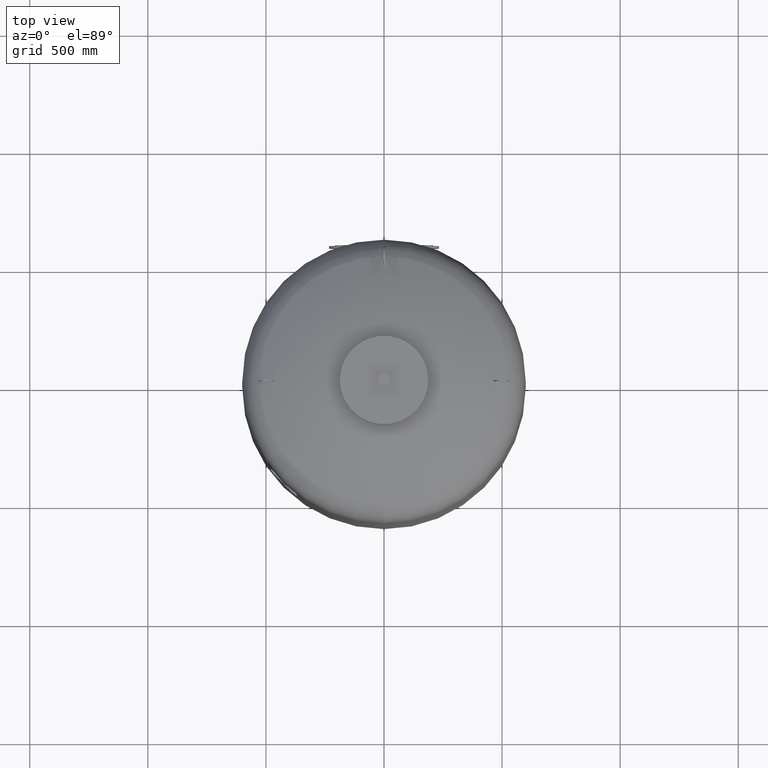
[diagram: clean part render]
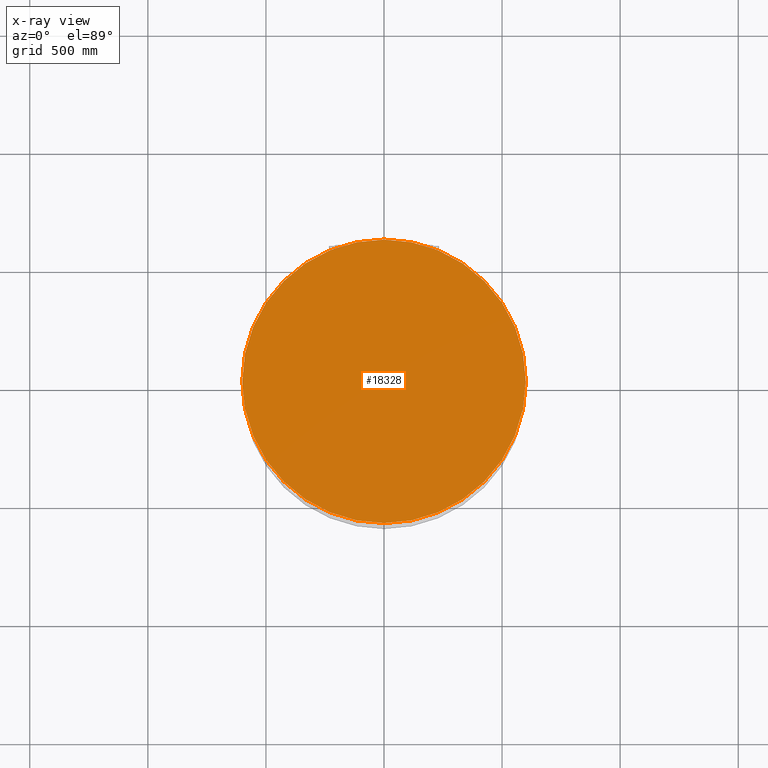
[diagram: x-ray — body ghosted, one internal face saturated and labeled with its STEP entity id]
A machine part, top view, then the same camera in x-ray: the body is ghosted and one INTERNAL B-rep face — a face not visible from any outside direction — is saturated and labeled: STEP entity #18328.
In plain terms, the highlighted planar face has unit normal (0, 0, 1).
Its self-contained STEP definition (entity closure, byte-faithful):
#18118=CARTESIAN_POINT('',(600.0,0.0,2145.0));
#18119=VERTEX_POINT('',#18118);
#18128=CARTESIAN_POINT('',(-600.000000000000110,-7.347638E-014,2145.0));
#18129=VERTEX_POINT('',#18128);
#18130=CARTESIAN_POINT('',(1.668796E-014,0.0,2145.0));
#18131=DIRECTION('',(0.0,0.0,1.0));
#18132=DIRECTION('',(1.0,0.0,0.0));
#18133=AXIS2_PLACEMENT_3D('',#18130,#18131,#18132);
#18134=CIRCLE('',#18133,600.0);
#18135=EDGE_CURVE('',#18129,#18119,#18134,.T.);
#18309=CARTESIAN_POINT('',(1.668796E-014,0.0,2145.0));
#18310=DIRECTION('',(0.0,0.0,1.0));
#18311=DIRECTION('',(1.0,0.0,0.0));
#18312=AXIS2_PLACEMENT_3D('',#18309,#18310,#18311);
#18313=CIRCLE('',#18312,600.0);
#18314=EDGE_CURVE('',#18119,#18129,#18313,.T.);
#18319=CARTESIAN_POINT('',(300.0,0.0,2145.0));
#18320=DIRECTION('',(0.0,0.0,1.0));
#18321=DIRECTION('',(1.0,0.0,0.0));
#18322=AXIS2_PLACEMENT_3D('',#18319,#18320,#18321);
#18323=PLANE('',#18322);
#18324=ORIENTED_EDGE('',*,*,#18314,.T.);
#18325=ORIENTED_EDGE('',*,*,#18135,.T.);
#18326=EDGE_LOOP('',(#18324,#18325));
#18327=FACE_OUTER_BOUND('',#18326,.T.);
#18328=ADVANCED_FACE('',(#18327),#18323,.T.);